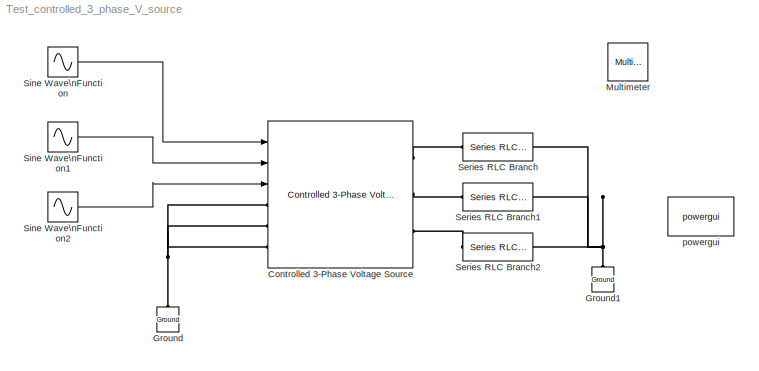
MODEL Test_controlled_3_phase_V_source
KIND model
BLOCK [Reference] Controlled 3-Phase Voltage Source  REF=pm_machines_library/Controlled 3-Phase Voltage Source  (lib defined in slx_81e85edba9f0)
  FunctionWithSeparateData = off
  GeneratePreprocessorConditionals = off
  Ports = [3, 0, 0, 0, 0, 3, 3]
  RTWMemSecDataConstants = Inherit from model
  RTWMemSecDataInternal = Inherit from model
  RTWMemSecDataParameters = Inherit from model
  RTWMemSecFuncExecute = Inherit from model
  RTWMemSecFuncInitTerm = Inherit from model
  SID = 1
  ShowPortLabels = FromPortIcon
  SourceBlock = pm_machines_library/Controlled 3-Phase Voltage Source
  SourceType = Controlled 3-Phase Voltage Source
  SystemSampleTime = -1
BLOCK [Reference] Ground  REF=powerlib/Elements/Ground
  LConnTagsString = a
  LeftPortType = p1
  PhysicalDomain = powersysdomain
  Ports = [0, 0, 0, 0, 0, 1]
  RightPortType = p1
  SID = 3
  SourceBlock = powerlib/Elements/Ground
  SourceType = Ground
  SubClassName = unknown
BLOCK [Reference] Ground1  REF=powerlib/Elements/Ground
  LConnTagsString = a
  LeftPortType = p1
  PhysicalDomain = powersysdomain
  Ports = [0, 0, 0, 0, 0, 1]
  RightPortType = p1
  SID = 8
  SourceBlock = powerlib/Elements/Ground
  SourceType = Ground
  SubClassName = unknown
BLOCK [Reference] Multimeter  REF=powerlib/Measurements/Multimeter
  AxesSetting = [0,0.1,-100,100]
  Display = 1
  FunctionWithSeparateData = off
  Gain = [1 1 1 1 1 1]
  GeneratePreprocessorConditionals = off
  L = 6
  OutputType = Complex
  PSBOutputType = 1
  PSBequivalent = 0
  PhasorSimulation = off
  Ports = [0, 1, 0, 0, 0, 1]
  RTWMemSecDataConstants = Inherit from model
  RTWMemSecDataInternal = Inherit from model
  RTWMemSecDataParameters = Inherit from model
  RTWMemSecFuncExecute = Inherit from model
  RTWMemSecFuncInitTerm = Inherit from model
  SID = 12
  SavedBlockNames = -11
  ShowPortLabels = FromPortIcon
  SourceBlock = powerlib/Measurements/Multimeter
  SourceType = MultimeterPSB
  SystemSampleTime = -1
  sel = [1 4 3 4 5 6]
  yselected = {'Ub: Series RLC Branch','Ib: Series RLC Branch','Ub: Series RLC Branch2','Ib: Series RLC Branch','Ib: Series RLC Branch1','Ib: Series RLC Branch2'};
BLOCK [Reference] Series RLC Branch  REF=powerlib/Elements/Series RLC Branch
  BranchType = R
  Capacitance = 0
  Inductance = 0
  InitialCurrent = 0
  InitialVoltage = 0
  LConnTagsString = __new0
  LeftPortType = p1
  Measurements = Branch voltage and current
  PhysicalDomain = powersysdomain
  Ports = [0, 0, 0, 0, 0, 1, 1]
  RConnTagsString = __new0
  Resistance = 1
  RightPortType = p1
  SID = 9
  SetiL0 = off
  Setx0 = off
  SourceBlock = powerlib/Elements/Series RLC Branch
  SourceType = Series RLC Branch
  SubClassName = unknown
BLOCK [Reference] Series RLC Branch1  REF=powerlib/Elements/Series RLC Branch
  BranchType = R
  Capacitance = 1e-6
  Inductance = 1e-3
  InitialCurrent = 0
  InitialVoltage = 0
  LConnTagsString = __new0
  LeftPortType = p1
  Measurements = Branch voltage and current
  PhysicalDomain = powersysdomain
  Ports = [0, 0, 0, 0, 0, 1, 1]
  RConnTagsString = __new0
  Resistance = 1
  RightPortType = p1
  SID = 10
  SetiL0 = off
  Setx0 = off
  SourceBlock = powerlib/Elements/Series RLC Branch
  SourceType = Series RLC Branch
  SubClassName = unknown
BLOCK [Reference] Series RLC Branch2  REF=powerlib/Elements/Series RLC Branch
  BranchType = R
  Capacitance = 1e-6
  Inductance = 1e-3
  InitialCurrent = 0
  InitialVoltage = 0
  LConnTagsString = __new0
  LeftPortType = p1
  Measurements = Branch voltage and current
  PhysicalDomain = powersysdomain
  Ports = [0, 0, 0, 0, 0, 1, 1]
  RConnTagsString = __new0
  Resistance = 1
  RightPortType = p1
  SID = 11
  SetiL0 = off
  Setx0 = off
  SourceBlock = powerlib/Elements/Series RLC Branch
  SourceType = Series RLC Branch
  SubClassName = unknown
BLOCK [Sin] Sine Wave\nFunction
  Frequency = 6.28
  Ports = [0, 1]
  SID = 13
  SampleTime = 0
BLOCK [Sin] Sine Wave\nFunction1
  Frequency = 6.28
  Phase = 2.0944
  Ports = [0, 1]
  SID = 14
  SampleTime = 0
BLOCK [Sin] Sine Wave\nFunction2
  Frequency = 6.28
  Phase = 4.188
  Ports = [0, 1]
  SID = 15
  SampleTime = 0
BLOCK [Reference] powergui  REF=powerlib/powergui
  DisableRonSwitches = off
  DisableSnubberDevices = off
  DisableVfSwitches = off
  DisplayEquations = off
  DisplayStyle = 1
  EnableUseOfTLC = off
  ErrMax = 1e-4
  FreqAxis = off
  FunctionMessages = off
  FunctionWithSeparateData = off
  GeneratePreprocessorConditionals = off
  HookPort = off
  Interpol = off
  Iterations = 50
  MaxFrequency = 1000
  Pbase = 100e6
  Ports = []
  Priority = 1
  RTWMemSecDataConstants = Inherit from model
  RTWMemSecDataInternal = Inherit from model
  RTWMemSecDataParameters = Inherit from model
  RTWMemSecFuncExecute = Inherit from model
  RTWMemSecFuncInitTerm = Inherit from model
  ResistiveCurrentMeasurement = off
  RestoreLinks = warning
  SID = 16
  SPID = off
  SampleTime = 50e-6
  ShowGrid = off
  ShowPortLabels = FromPortIcon
  SourceBlock = powerlib/powergui
  SourceType = PSB option menu block
  StartTime = 0.0
  SwTol = 0
  SystemSampleTime = -1
  UnitsV = kV
  UnitsW = MW
  UserDataPersistent = on
  Xlog = on
  Ylog = off
  ZoomFFT = off
  cycles = 1
  display = off
  echomessages = off
  frequency = 60
  frequencyindice = 0
  frequencyindicesteady = 1
  methode = off
  save = off
  variable = ZData
  x0status = blocks
LINE Sine Wave\nFunction1:1 -> Controlled 3-Phase Voltage Source:2
LINE Sine Wave\nFunction2:1 -> Controlled 3-Phase Voltage Source:3
LINE Sine Wave\nFunction:1 -> Controlled 3-Phase Voltage Source:1
PNET net1: Controlled 3-Phase Voltage Source:LConn1 -- Controlled 3-Phase Voltage Source:LConn2 -- Controlled 3-Phase Voltage Source:LConn3 -- Ground:LConn1
PLINE Controlled 3-Phase Voltage Source:RConn1 -- Series RLC Branch:LConn1
PLINE Controlled 3-Phase Voltage Source:RConn2 -- Series RLC Branch1:LConn1
PLINE Controlled 3-Phase Voltage Source:RConn3 -- Series RLC Branch2:LConn1
PNET net2: Ground1:LConn1 -- Series RLC Branch1:RConn1 -- Series RLC Branch2:RConn1 -- Series RLC Branch:RConn1
note: PNET lines group multi-terminal physical nets as a canonical sorted terminal list (undirected conserving connections); 2-terminal nets keep the pairwise PLINE form
